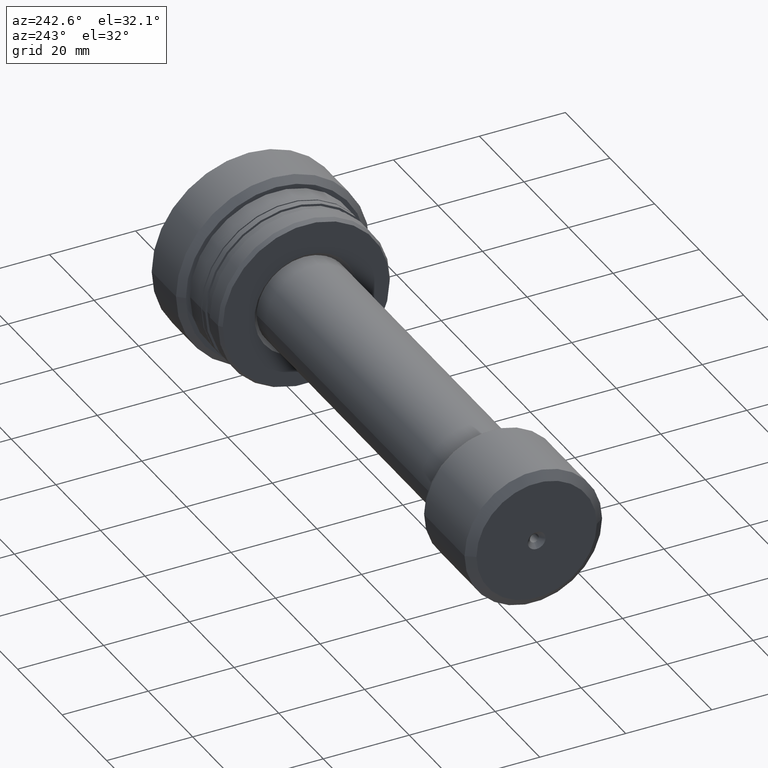
[diagram: clean part render]
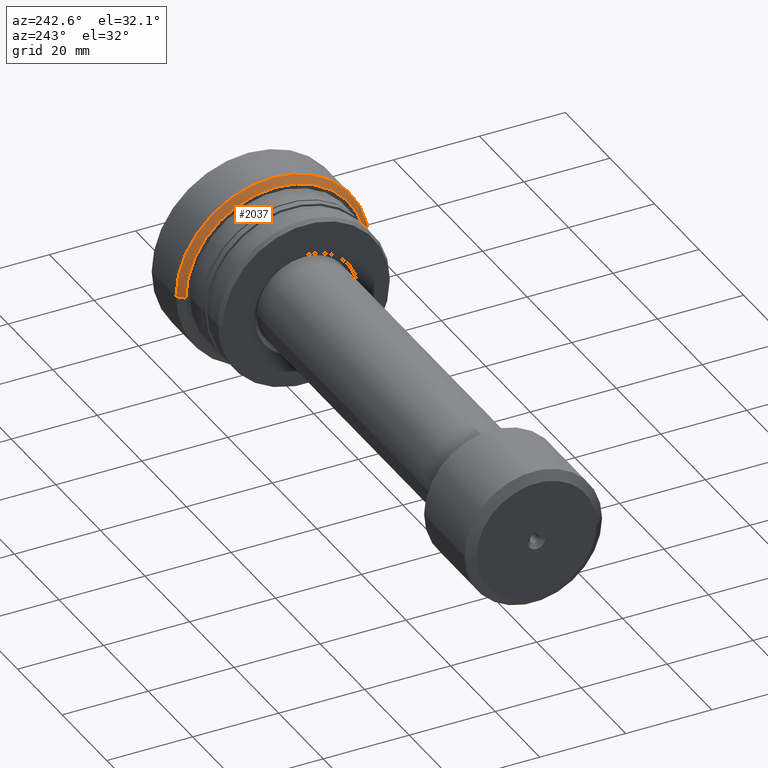
[diagram: same view with one face highlighted and labeled with its STEP entity id]
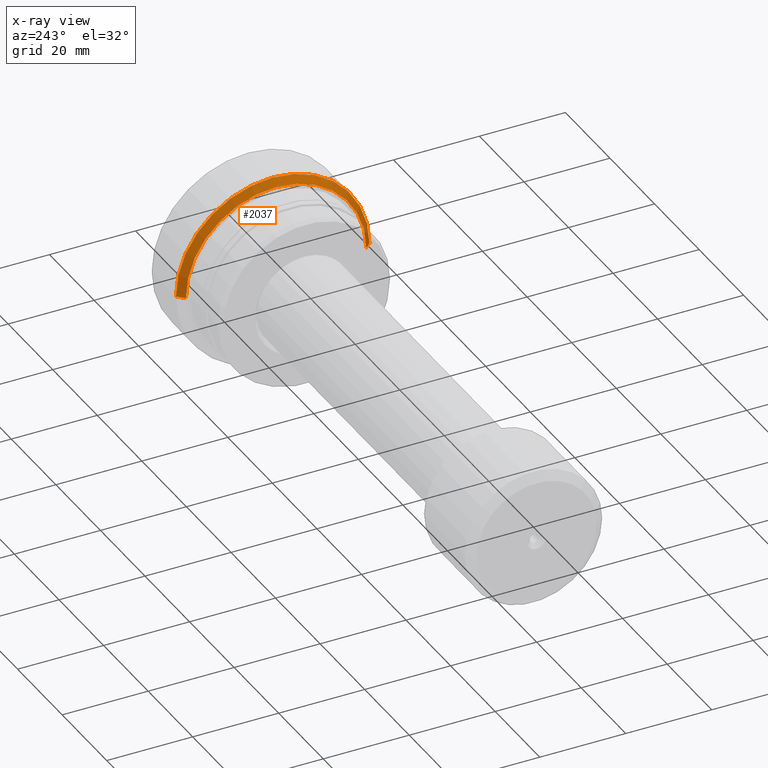
[diagram: x-ray of the same camera — body ghosted, the highlighted face saturated]
A machine part, auxiliary view. The second image highlights one B-rep face of the part: STEP entity #2037.
The next image is the same camera in x-ray: the body ghosted, the highlighted face saturated — about 3% of this face is hidden behind the body in this view.
In plain terms, the highlighted conical surface has half-angle 45 deg.
Its self-contained STEP definition (entity closure, byte-faithful):
#12 = CARTESIAN_POINT ( 'NONE',  ( -13.99999999999994316, 21.00000000000064659, 0.000000000000000000 ) ) ;
#83 = VERTEX_POINT ( 'NONE', #2070 ) ;
#350 = CIRCLE ( 'NONE', #1661, 21.00000000000066791 ) ;
#413 = DIRECTION ( 'NONE',  ( 1.000000000000000000, -1.333885945136072597E-15, 0.000000000000000000 ) ) ;
#482 = EDGE_CURVE ( 'NONE', #2276, #83, #930, .T. ) ;
#536 = DIRECTION ( 'NONE',  ( -1.321694076934668198E-15, -1.000000000000000000, 0.000000000000000000 ) ) ;
#575 = CARTESIAN_POINT ( 'NONE',  ( -12.50000000000065370, -2.371652247300287340E-14, 0.000000000000000000 ) ) ;
#675 = CARTESIAN_POINT ( 'NONE',  ( -12.50000000000068212, -22.49999999999999645, 2.755455298081541622E-15 ) ) ;
#692 = EDGE_CURVE ( 'NONE', #2265, #83, #2014, .T. ) ;
#721 = DIRECTION ( 'NONE',  ( -1.000000000000000000, 1.333885945136072597E-15, -0.000000000000000000 ) ) ;
#738 = CONICAL_SURFACE ( 'NONE', #1091, 21.00000000000066791, 0.7853981633974447263 ) ;
#777 = CARTESIAN_POINT ( 'NONE',  ( -13.99999999999999822, -21.00000000000068923, 2.663606788145532860E-15 ) ) ;
#870 = LINE ( 'NONE', #2403, #2174 ) ;
#930 = LINE ( 'NONE', #12, #1816 ) ;
#1091 = AXIS2_PLACEMENT_3D ( 'NONE', #1688, #413, #1707 ) ;
#1196 = ORIENTED_EDGE ( 'NONE', *, *, #482, .F. ) ;
#1197 = ORIENTED_EDGE ( 'NONE', *, *, #2095, .F. ) ;
#1320 = DIRECTION ( 'NONE',  ( -1.000000000000000000, 1.333885945136072597E-15, -0.000000000000000000 ) ) ;
#1438 = CARTESIAN_POINT ( 'NONE',  ( -13.99999999999994316, 21.00000000000064659, 0.000000000000000000 ) ) ;
#1520 = VERTEX_POINT ( 'NONE', #777 ) ;
#1661 = AXIS2_PLACEMENT_3D ( 'NONE', #2263, #721, #536 ) ;
#1688 = CARTESIAN_POINT ( 'NONE',  ( -13.99999999999997158, -2.171569355529967032E-14, 0.000000000000000000 ) ) ;
#1707 = DIRECTION ( 'NONE',  ( 1.321694076934668198E-15, 1.000000000000000000, 0.000000000000000000 ) ) ;
#1774 = ORIENTED_EDGE ( 'NONE', *, *, #2368, .T. ) ;
#1816 = VECTOR ( 'NONE', #1854, 1000.000000000000000 ) ;
#1854 = DIRECTION ( 'NONE',  ( 0.7071067811865507924, 0.7071067811865441310, 0.000000000000000000 ) ) ;
#1917 = DIRECTION ( 'NONE',  ( -1.310679959626922274E-15, -1.000000000000000000, 0.000000000000000000 ) ) ;
#2014 = CIRCLE ( 'NONE', #2413, 22.49999999999997513 ) ;
#2037 = ADVANCED_FACE ( 'NONE', ( #2076 ), #738, .T. ) ;
#2070 = CARTESIAN_POINT ( 'NONE',  ( -12.50000000000062350, 22.49999999999995026, 0.000000000000000000 ) ) ;
#2076 = FACE_OUTER_BOUND ( 'NONE', #2124, .T. ) ;
#2095 = EDGE_CURVE ( 'NONE', #1520, #2276, #350, .T. ) ;
#2124 = EDGE_LOOP ( 'NONE', ( #1197, #1774, #2272, #1196 ) ) ;
#2174 = VECTOR ( 'NONE', #2187, 1000.000000000000000 ) ;
#2187 = DIRECTION ( 'NONE',  ( 0.7071067811865491270, -0.7071067811865459074, 8.659560562354902043E-17 ) ) ;
#2263 = CARTESIAN_POINT ( 'NONE',  ( -13.99999999999997158, -2.171569355529967032E-14, 0.000000000000000000 ) ) ;
#2265 = VERTEX_POINT ( 'NONE', #675 ) ;
#2272 = ORIENTED_EDGE ( 'NONE', *, *, #692, .T. ) ;
#2276 = VERTEX_POINT ( 'NONE', #1438 ) ;
#2368 = EDGE_CURVE ( 'NONE', #1520, #2265, #870, .T. ) ;
#2403 = CARTESIAN_POINT ( 'NONE',  ( -13.99999999999999822, -21.00000000000068923, 2.571758278209523308E-15 ) ) ;
#2413 = AXIS2_PLACEMENT_3D ( 'NONE', #575, #1320, #1917 ) ;